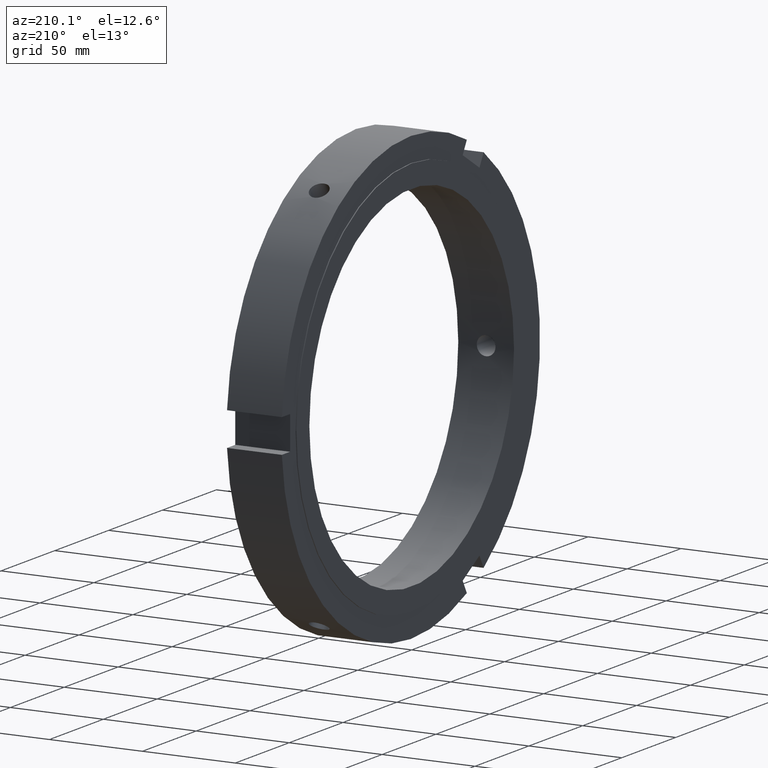
[diagram: clean part render]
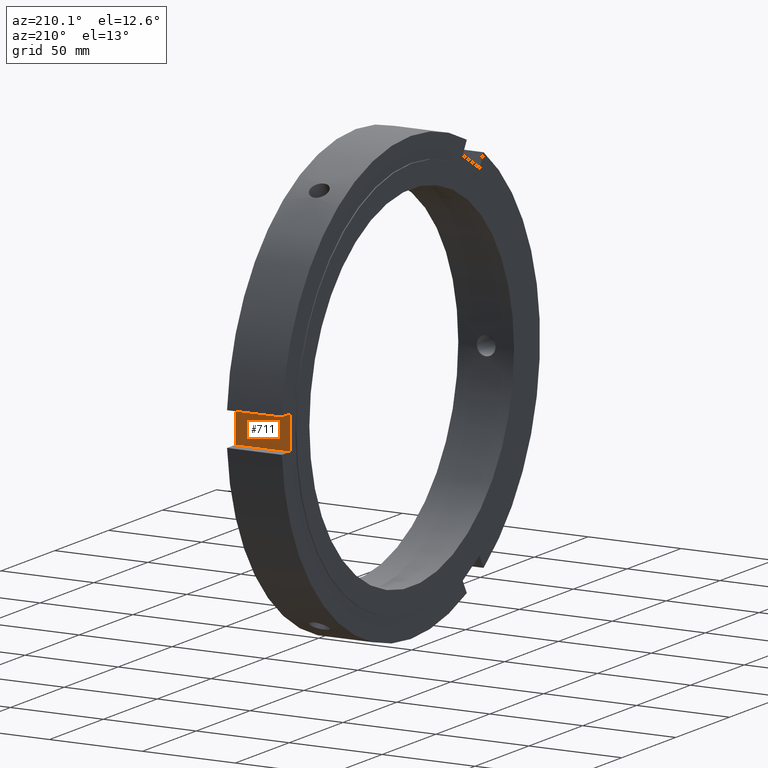
[diagram: same view with one face highlighted and labeled with its STEP entity id]
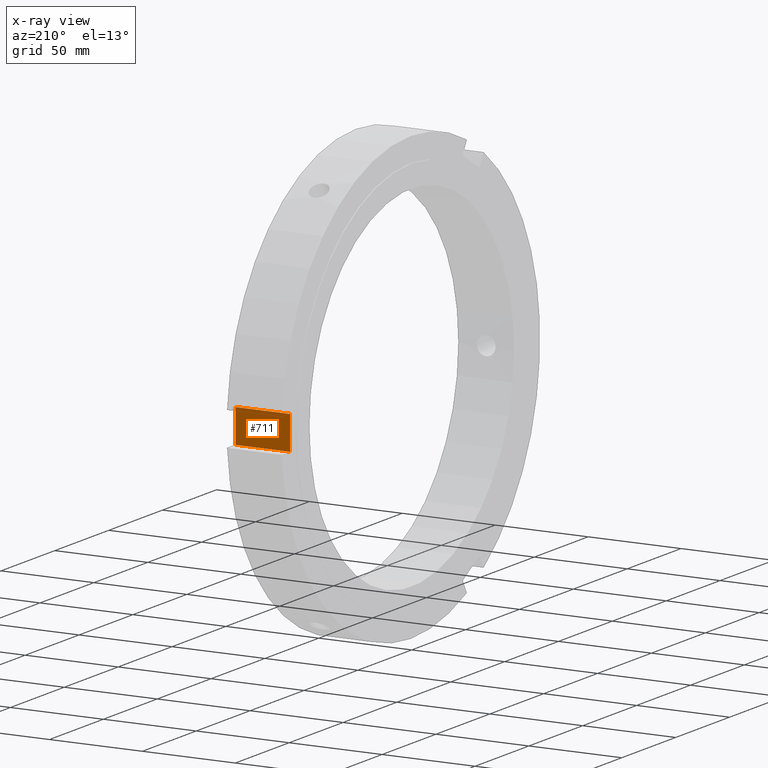
[diagram: x-ray of the same camera — body ghosted, the highlighted face saturated]
A machine part, auxiliary view. The second image highlights one B-rep face of the part: STEP entity #711.
The next image is the same camera in x-ray: the body ghosted, the highlighted face saturated — about 0% of this face is hidden behind the body in this view.
In plain terms, the highlighted planar face has unit normal (0, -1, 0).
Its self-contained STEP definition (entity closure, byte-faithful):
#553=CARTESIAN_POINT('',(29.999999999999972,112.0,-8.999999999999986));
#554=VERTEX_POINT('',#553);
#561=CARTESIAN_POINT('',(29.999999999999972,112.0,9.000000000000014));
#562=VERTEX_POINT('',#561);
#563=CARTESIAN_POINT('',(29.999999999999972,112.0,-8.999999999999986));
#564=DIRECTION('',(0.0,0.0,1.0));
#565=VECTOR('',#564,18.0);
#566=LINE('',#563,#565);
#567=EDGE_CURVE('',#554,#562,#566,.T.);
#669=CARTESIAN_POINT('',(0.499999999999972,112.0,-8.999999999999986));
#670=VERTEX_POINT('',#669);
#677=CARTESIAN_POINT('',(29.999999999999972,112.0,-8.999999999999986));
#678=DIRECTION('',(-1.0,0.0,0.0));
#679=VECTOR('',#678,29.5);
#680=LINE('',#677,#679);
#681=EDGE_CURVE('',#554,#670,#680,.T.);
#688=CARTESIAN_POINT('',(29.999999999999972,112.0,-8.999999999999986));
#689=DIRECTION('',(0.0,-1.0,0.0));
#690=DIRECTION('',(0.0,0.0,1.0));
#691=AXIS2_PLACEMENT_3D('',#688,#689,#690);
#692=PLANE('',#691);
#693=CARTESIAN_POINT('',(0.499999999999972,112.0,9.000000000000014));
#694=VERTEX_POINT('',#693);
#695=CARTESIAN_POINT('',(0.499999999999969,112.0,9.000000000000014));
#696=DIRECTION('',(0.0,0.0,-1.0));
#697=VECTOR('',#696,18.0);
#698=LINE('',#695,#697);
#699=EDGE_CURVE('',#694,#670,#698,.T.);
#700=ORIENTED_EDGE('',*,*,#699,.F.);
#701=CARTESIAN_POINT('',(29.999999999999972,112.0,9.000000000000014));
#702=DIRECTION('',(-1.0,0.0,0.0));
#703=VECTOR('',#702,29.5);
#704=LINE('',#701,#703);
#705=EDGE_CURVE('',#562,#694,#704,.T.);
#706=ORIENTED_EDGE('',*,*,#705,.F.);
#707=ORIENTED_EDGE('',*,*,#567,.F.);
#708=ORIENTED_EDGE('',*,*,#681,.T.);
#709=EDGE_LOOP('',(#700,#706,#707,#708));
#710=FACE_OUTER_BOUND('',#709,.T.);
#711=ADVANCED_FACE('',(#710),#692,.F.);